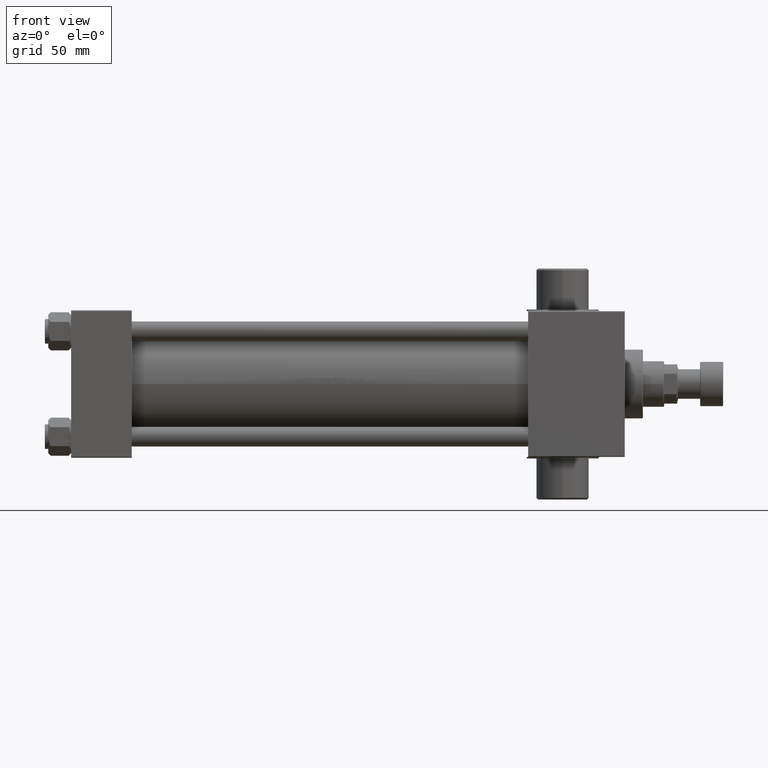
[diagram: clean part render]
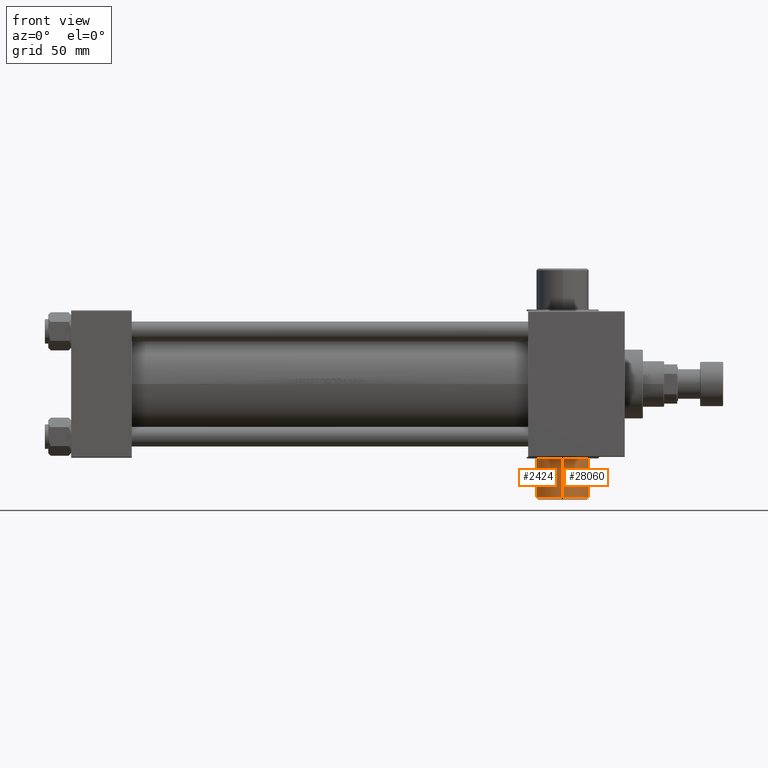
[diagram: same view with one multi-face feature highlighted, each face labeled with its STEP entity id]
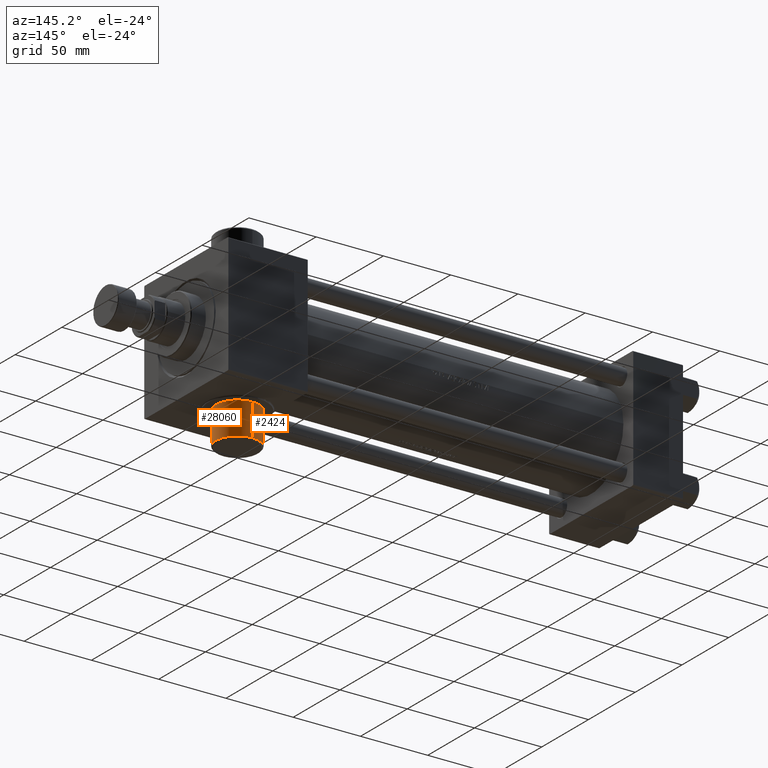
[diagram: same view with one multi-face feature highlighted, each face labeled with its STEP entity id]
A machine part, front view. The highlighted faces form ONE feature: a constant-radius fillet chain: 2 tangent blend faces with common blend radius 16 mm. The faces share edges in the B-rep.
A second angle (auxiliary view) of the same feature is appended — it is thin or edge-on in the first view.
Their STEP definitions:
[1] entity #28060 (Cylinder):
#753 = EDGE_LOOP ( 'NONE', ( #1222, #15886, #29582, #2348 ) ) ;
#1014 = VECTOR ( 'NONE', #34847, 1000.000000000000000 ) ;
#1222 = ORIENTED_EDGE ( 'NONE', *, *, #31164, .T. ) ;
#1484 = VERTEX_POINT ( 'NONE', #30171 ) ;
#1992 = CARTESIAN_POINT ( 'NONE',  ( 300.0000000000000000, 70.50000000000000000, 16.00000000000002132 ) ) ;
#2348 = ORIENTED_EDGE ( 'NONE', *, *, #17810, .F. ) ;
#3648 = CIRCLE ( 'NONE', #37118, 16.00000000000002487 ) ;
#6624 = CARTESIAN_POINT ( 'NONE',  ( 300.0000000000000000, 45.49999999999999289, 16.00000000000002487 ) ) ;
#7347 = AXIS2_PLACEMENT_3D ( 'NONE', #22417, #26222, #36927 ) ;
#7751 = CARTESIAN_POINT ( 'NONE',  ( 300.0000000000000000, 69.49999999999987210, -16.00000000000002842 ) ) ;
#7886 = CYLINDRICAL_SURFACE ( 'NONE', #7347, 16.00000000000002487 ) ;
#9462 = VECTOR ( 'NONE', #42409, 1000.000000000000000 ) ;
#11469 = FACE_OUTER_BOUND ( 'NONE', #753, .T. ) ;
#12836 = VERTEX_POINT ( 'NONE', #6624 ) ;
#14353 = EDGE_CURVE ( 'NONE', #1484, #12836, #34610, .T. ) ;
#15886 = ORIENTED_EDGE ( 'NONE', *, *, #14353, .T. ) ;
#15896 = VERTEX_POINT ( 'NONE', #31637 ) ;
#16023 = CARTESIAN_POINT ( 'NONE',  ( 300.0000000000000000, 69.49999999999987210, -2.168404344970998218E-15 ) ) ;
#17810 = EDGE_CURVE ( 'NONE', #18481, #15896, #39082, .T. ) ;
#18481 = VERTEX_POINT ( 'NONE', #7751 ) ;
#19129 = DIRECTION ( 'NONE',  ( -0.000000000000000000, -1.000000000000000000, 8.673617379884030542E-17 ) ) ;
#22417 = CARTESIAN_POINT ( 'NONE',  ( 300.0000000000000000, 70.50000000000000000, -2.255140518769849223E-15 ) ) ;
#23635 = DIRECTION ( 'NONE',  ( -0.000000000000000000, -1.000000000000000000, 8.673617379884036705E-17 ) ) ;
#26222 = DIRECTION ( 'NONE',  ( -0.000000000000000000, -1.000000000000000000, 8.673617379884036705E-17 ) ) ;
#28060 = ADVANCED_FACE ( 'NONE', ( #11469 ), #7886, .T. ) ;
#29443 = DIRECTION ( 'NONE',  ( 0.000000000000000000, 0.000000000000000000, -1.000000000000000000 ) ) ;
#29582 = ORIENTED_EDGE ( 'NONE', *, *, #39360, .F. ) ;
#30171 = CARTESIAN_POINT ( 'NONE',  ( 300.0000000000000000, 69.49999999999987210, 16.00000000000002132 ) ) ;
#30294 = DIRECTION ( 'NONE',  ( 0.000000000000000000, 0.000000000000000000, 1.000000000000000000 ) ) ;
#31164 = EDGE_CURVE ( 'NONE', #18481, #1484, #3648, .T. ) ;
#31637 = CARTESIAN_POINT ( 'NONE',  ( 300.0000000000000000, 45.49999999999999289, -16.00000000000002487 ) ) ;
#34610 = LINE ( 'NONE', #1992, #1014 ) ;
#34847 = DIRECTION ( 'NONE',  ( -0.000000000000000000, -1.000000000000000000, 8.673617379884036705E-17 ) ) ;
#36927 = DIRECTION ( 'NONE',  ( 0.000000000000000000, 0.000000000000000000, -1.000000000000000000 ) ) ;
#37118 = AXIS2_PLACEMENT_3D ( 'NONE', #16023, #19129, #30294 ) ;
#37979 = CIRCLE ( 'NONE', #47090, 16.00000000000002487 ) ;
#39082 = LINE ( 'NONE', #39789, #9462 ) ;
#39360 = EDGE_CURVE ( 'NONE', #15896, #12836, #37979, .T. ) ;
#39789 = CARTESIAN_POINT ( 'NONE',  ( 300.0000000000000000, 70.50000000000000000, -16.00000000000002842 ) ) ;
#42409 = DIRECTION ( 'NONE',  ( -0.000000000000000000, -1.000000000000000000, 8.673617379884036705E-17 ) ) ;
#45524 = CARTESIAN_POINT ( 'NONE',  ( 300.0000000000000000, 45.49999999999999289, -8.673617379884004657E-17 ) ) ;
#47090 = AXIS2_PLACEMENT_3D ( 'NONE', #45524, #23635, #29443 ) ;
[2] entity #2424 (Cylinder):
#1014 = VECTOR ( 'NONE', #34847, 1000.000000000000000 ) ;
#1484 = VERTEX_POINT ( 'NONE', #30171 ) ;
#1992 = CARTESIAN_POINT ( 'NONE',  ( 300.0000000000000000, 70.50000000000000000, 16.00000000000002132 ) ) ;
#2030 = ORIENTED_EDGE ( 'NONE', *, *, #14353, .F. ) ;
#2424 = ADVANCED_FACE ( 'NONE', ( #35616 ), #46779, .T. ) ;
#3698 = ORIENTED_EDGE ( 'NONE', *, *, #36541, .F. ) ;
#6624 = CARTESIAN_POINT ( 'NONE',  ( 300.0000000000000000, 45.49999999999999289, 16.00000000000002487 ) ) ;
#7751 = CARTESIAN_POINT ( 'NONE',  ( 300.0000000000000000, 69.49999999999987210, -16.00000000000002842 ) ) ;
#9462 = VECTOR ( 'NONE', #42409, 1000.000000000000000 ) ;
#12107 = CARTESIAN_POINT ( 'NONE',  ( 300.0000000000000000, 69.49999999999987210, -2.168404344970998218E-15 ) ) ;
#12836 = VERTEX_POINT ( 'NONE', #6624 ) ;
#14162 = DIRECTION ( 'NONE',  ( -0.000000000000000000, -1.000000000000000000, 8.673617379884036705E-17 ) ) ;
#14353 = EDGE_CURVE ( 'NONE', #1484, #12836, #34610, .T. ) ;
#15896 = VERTEX_POINT ( 'NONE', #31637 ) ;
#16825 = DIRECTION ( 'NONE',  ( 0.000000000000000000, 0.000000000000000000, -1.000000000000000000 ) ) ;
#17810 = EDGE_CURVE ( 'NONE', #18481, #15896, #39082, .T. ) ;
#18481 = VERTEX_POINT ( 'NONE', #7751 ) ;
#19005 = AXIS2_PLACEMENT_3D ( 'NONE', #38701, #20392, #16825 ) ;
#19636 = ORIENTED_EDGE ( 'NONE', *, *, #39984, .T. ) ;
#20392 = DIRECTION ( 'NONE',  ( -0.000000000000000000, -1.000000000000000000, 8.673617379884036705E-17 ) ) ;
#25743 = CIRCLE ( 'NONE', #38639, 16.00000000000002487 ) ;
#26621 = DIRECTION ( 'NONE',  ( 0.000000000000000000, 0.000000000000000000, 1.000000000000000000 ) ) ;
#28670 = DIRECTION ( 'NONE',  ( 0.000000000000000000, 0.000000000000000000, -1.000000000000000000 ) ) ;
#29650 = CIRCLE ( 'NONE', #44808, 16.00000000000002487 ) ;
#30171 = CARTESIAN_POINT ( 'NONE',  ( 300.0000000000000000, 69.49999999999987210, 16.00000000000002132 ) ) ;
#31637 = CARTESIAN_POINT ( 'NONE',  ( 300.0000000000000000, 45.49999999999999289, -16.00000000000002487 ) ) ;
#34610 = LINE ( 'NONE', #1992, #1014 ) ;
#34847 = DIRECTION ( 'NONE',  ( -0.000000000000000000, -1.000000000000000000, 8.673617379884036705E-17 ) ) ;
#35616 = FACE_OUTER_BOUND ( 'NONE', #44200, .T. ) ;
#36541 = EDGE_CURVE ( 'NONE', #12836, #15896, #25743, .T. ) ;
#37895 = ORIENTED_EDGE ( 'NONE', *, *, #17810, .T. ) ;
#38639 = AXIS2_PLACEMENT_3D ( 'NONE', #46744, #14162, #28670 ) ;
#38701 = CARTESIAN_POINT ( 'NONE',  ( 300.0000000000000000, 70.50000000000000000, -2.255140518769849223E-15 ) ) ;
#39082 = LINE ( 'NONE', #39789, #9462 ) ;
#39789 = CARTESIAN_POINT ( 'NONE',  ( 300.0000000000000000, 70.50000000000000000, -16.00000000000002842 ) ) ;
#39984 = EDGE_CURVE ( 'NONE', #1484, #18481, #29650, .T. ) ;
#42409 = DIRECTION ( 'NONE',  ( -0.000000000000000000, -1.000000000000000000, 8.673617379884036705E-17 ) ) ;
#44200 = EDGE_LOOP ( 'NONE', ( #2030, #19636, #37895, #3698 ) ) ;
#44808 = AXIS2_PLACEMENT_3D ( 'NONE', #12107, #44934, #26621 ) ;
#44934 = DIRECTION ( 'NONE',  ( -0.000000000000000000, -1.000000000000000000, 8.673617379884030542E-17 ) ) ;
#46744 = CARTESIAN_POINT ( 'NONE',  ( 300.0000000000000000, 45.49999999999999289, -8.673617379884004657E-17 ) ) ;
#46779 = CYLINDRICAL_SURFACE ( 'NONE', #19005, 16.00000000000002487 ) ;